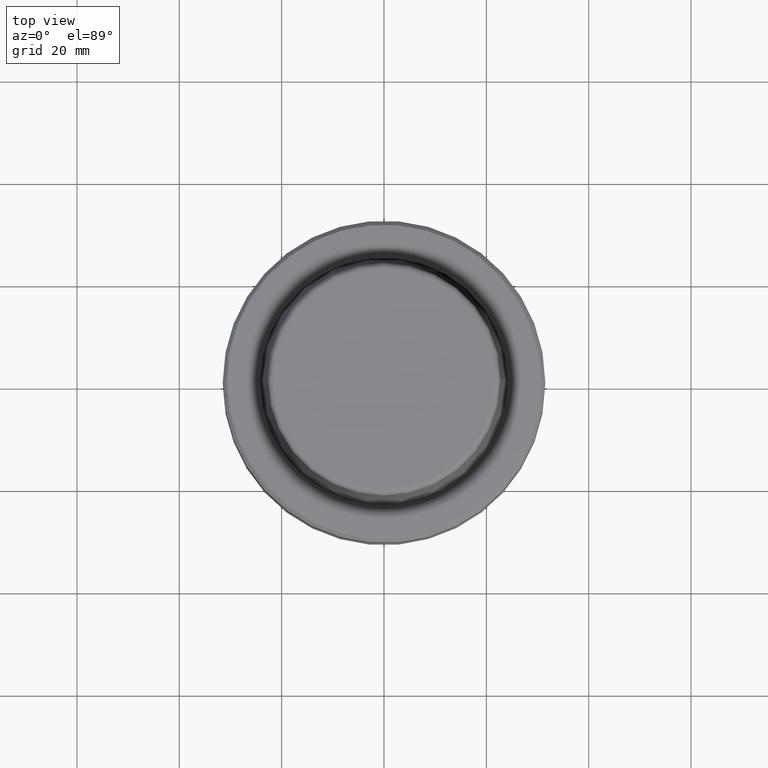
[diagram: clean part render]
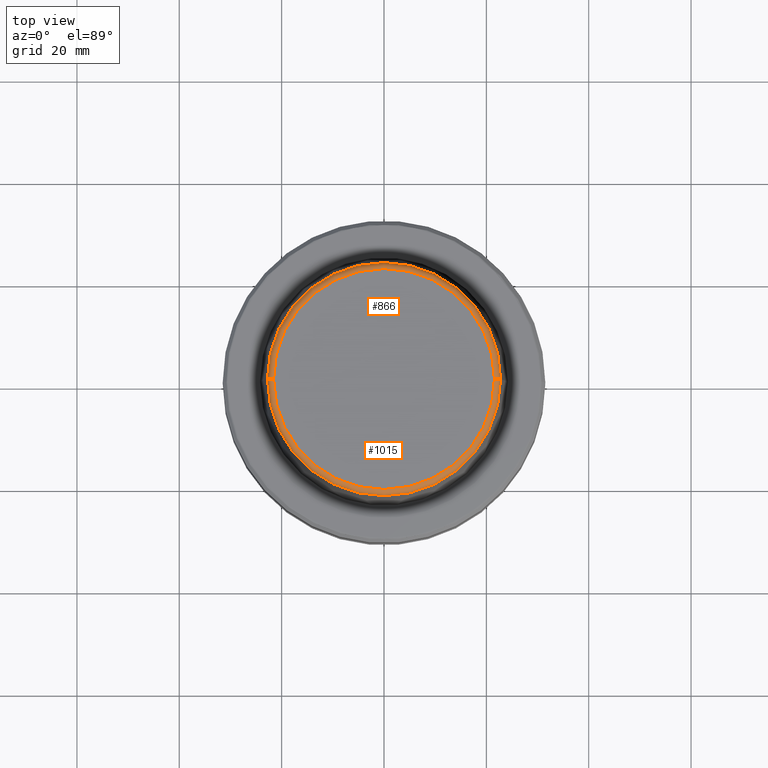
[diagram: same view with one multi-face feature highlighted, each face labeled with its STEP entity id]
A machine part, top view. The highlighted faces form ONE feature: a constant-radius fillet chain: 2 tangent blend faces with common blend radius 1.2 mm. The faces share edges in the B-rep.
Their STEP definitions:
[1] entity #1015 (Torus):
#3 = CIRCLE ( 'NONE', #635, 21.58108272732117100 ) ;
#14 = DIRECTION ( 'NONE',  ( 1.224646799147353200E-016, 1.000000000000000000, 0.0000000000000000000 ) ) ;
#22 = DIRECTION ( 'NONE',  ( 1.000000000000000000, 0.0000000000000000000, 0.0000000000000000000 ) ) ;
#26 = EDGE_CURVE ( 'NONE', #651, #326, #380, .T. ) ;
#31 = DIRECTION ( 'NONE',  ( 1.000000000000000000, 0.0000000000000000000, 0.0000000000000000000 ) ) ;
#56 = CIRCLE ( 'NONE', #747, 1.200000000000003100 ) ;
#65 = TOROIDAL_SURFACE ( 'NONE', #799, 21.58108272732117100, 1.200000000000003100 ) ;
#204 = CARTESIAN_POINT ( 'NONE',  ( 21.58108272732117100, 0.0000000000000000000, 30.69999999999999200 ) ) ;
#207 = CARTESIAN_POINT ( 'NONE',  ( 22.77957961851797100, 2.876386432489616700E-015, 30.76004333261571900 ) ) ;
#266 = ORIENTED_EDGE ( 'NONE', *, *, #1059, .F. ) ;
#267 = ORIENTED_EDGE ( 'NONE', *, *, #530, .T. ) ;
#300 = DIRECTION ( 'NONE',  ( 0.0000000000000000000, 0.0000000000000000000, -1.000000000000000000 ) ) ;
#304 = ORIENTED_EDGE ( 'NONE', *, *, #1211, .T. ) ;
#325 = CARTESIAN_POINT ( 'NONE',  ( -22.77957961851797100, 0.0000000000000000000, 30.76004333261571900 ) ) ;
#326 = VERTEX_POINT ( 'NONE', #745 ) ;
#329 = AXIS2_PLACEMENT_3D ( 'NONE', #395, #14, #648 ) ;
#338 = DIRECTION ( 'NONE',  ( -0.0000000000000000000, -0.0000000000000000000, 1.000000000000000000 ) ) ;
#367 = CIRCLE ( 'NONE', #640, 22.77957961851797100 ) ;
#380 = CIRCLE ( 'NONE', #329, 1.200000000000003100 ) ;
#388 = EDGE_LOOP ( 'NONE', ( #1027, #304, #267, #266 ) ) ;
#395 = CARTESIAN_POINT ( 'NONE',  ( -21.58108272732117100, 2.642920388414810300E-015, 30.69999999999999200 ) ) ;
#423 = CARTESIAN_POINT ( 'NONE',  ( 21.58108272732117100, 0.0000000000000000000, 31.89999999999999900 ) ) ;
#530 = EDGE_CURVE ( 'NONE', #1021, #1115, #56, .T. ) ;
#621 = DIRECTION ( 'NONE',  ( -0.0000000000000000000, -0.0000000000000000000, 1.000000000000000000 ) ) ;
#635 = AXIS2_PLACEMENT_3D ( 'NONE', #1191, #621, #31 ) ;
#640 = AXIS2_PLACEMENT_3D ( 'NONE', #934, #338, #1032 ) ;
#648 = DIRECTION ( 'NONE',  ( -1.000000000000000000, 1.224646799147353200E-016, 0.0000000000000000000 ) ) ;
#651 = VERTEX_POINT ( 'NONE', #325 ) ;
#745 = CARTESIAN_POINT ( 'NONE',  ( -21.58108272732117100, 2.716307157494421400E-015, 31.89999999999999900 ) ) ;
#747 = AXIS2_PLACEMENT_3D ( 'NONE', #204, #897, #300 ) ;
#794 = DIRECTION ( 'NONE',  ( -0.0000000000000000000, -0.0000000000000000000, 1.000000000000000000 ) ) ;
#799 = AXIS2_PLACEMENT_3D ( 'NONE', #1185, #794, #22 ) ;
#837 = FACE_OUTER_BOUND ( 'NONE', #388, .T. ) ;
#897 = DIRECTION ( 'NONE',  ( 0.0000000000000000000, -1.000000000000000000, 0.0000000000000000000 ) ) ;
#934 = CARTESIAN_POINT ( 'NONE',  ( 0.0000000000000000000, 0.0000000000000000000, 30.76004333261571900 ) ) ;
#1015 = ADVANCED_FACE ( 'NONE', ( #837 ), #65, .T. ) ;
#1021 = VERTEX_POINT ( 'NONE', #207 ) ;
#1027 = ORIENTED_EDGE ( 'NONE', *, *, #26, .F. ) ;
#1032 = DIRECTION ( 'NONE',  ( 1.000000000000000000, 0.0000000000000000000, 0.0000000000000000000 ) ) ;
#1059 = EDGE_CURVE ( 'NONE', #326, #1115, #3, .T. ) ;
#1115 = VERTEX_POINT ( 'NONE', #423 ) ;
#1185 = CARTESIAN_POINT ( 'NONE',  ( 0.0000000000000000000, 0.0000000000000000000, 30.69999999999999200 ) ) ;
#1191 = CARTESIAN_POINT ( 'NONE',  ( 0.0000000000000000000, 0.0000000000000000000, 31.89999999999999900 ) ) ;
#1211 = EDGE_CURVE ( 'NONE', #651, #1021, #367, .T. ) ;
[2] entity #866 (Torus):
#14 = DIRECTION ( 'NONE',  ( 1.224646799147353200E-016, 1.000000000000000000, 0.0000000000000000000 ) ) ;
#23 = DIRECTION ( 'NONE',  ( 1.000000000000000000, 0.0000000000000000000, 0.0000000000000000000 ) ) ;
#26 = EDGE_CURVE ( 'NONE', #651, #326, #380, .T. ) ;
#56 = CIRCLE ( 'NONE', #747, 1.200000000000003100 ) ;
#204 = CARTESIAN_POINT ( 'NONE',  ( 21.58108272732117100, 0.0000000000000000000, 30.69999999999999200 ) ) ;
#207 = CARTESIAN_POINT ( 'NONE',  ( 22.77957961851797100, 2.876386432489616700E-015, 30.76004333261571900 ) ) ;
#252 = EDGE_CURVE ( 'NONE', #1115, #326, #886, .T. ) ;
#300 = DIRECTION ( 'NONE',  ( 0.0000000000000000000, 0.0000000000000000000, -1.000000000000000000 ) ) ;
#309 = FACE_OUTER_BOUND ( 'NONE', #688, .T. ) ;
#325 = CARTESIAN_POINT ( 'NONE',  ( -22.77957961851797100, 0.0000000000000000000, 30.76004333261571900 ) ) ;
#326 = VERTEX_POINT ( 'NONE', #745 ) ;
#329 = AXIS2_PLACEMENT_3D ( 'NONE', #395, #14, #648 ) ;
#369 = CIRCLE ( 'NONE', #1194, 22.77957961851797100 ) ;
#380 = CIRCLE ( 'NONE', #329, 1.200000000000003100 ) ;
#395 = CARTESIAN_POINT ( 'NONE',  ( -21.58108272732117100, 2.642920388414810300E-015, 30.69999999999999200 ) ) ;
#423 = CARTESIAN_POINT ( 'NONE',  ( 21.58108272732117100, 0.0000000000000000000, 31.89999999999999900 ) ) ;
#434 = TOROIDAL_SURFACE ( 'NONE', #512, 21.58108272732117100, 1.200000000000003100 ) ;
#512 = AXIS2_PLACEMENT_3D ( 'NONE', #1055, #960, #1142 ) ;
#530 = EDGE_CURVE ( 'NONE', #1021, #1115, #56, .T. ) ;
#542 = EDGE_CURVE ( 'NONE', #1021, #651, #369, .T. ) ;
#543 = CARTESIAN_POINT ( 'NONE',  ( 0.0000000000000000000, 0.0000000000000000000, 31.89999999999999900 ) ) ;
#612 = DIRECTION ( 'NONE',  ( -0.0000000000000000000, -0.0000000000000000000, 1.000000000000000000 ) ) ;
#648 = DIRECTION ( 'NONE',  ( -1.000000000000000000, 1.224646799147353200E-016, 0.0000000000000000000 ) ) ;
#651 = VERTEX_POINT ( 'NONE', #325 ) ;
#657 = DIRECTION ( 'NONE',  ( 1.000000000000000000, 0.0000000000000000000, 0.0000000000000000000 ) ) ;
#688 = EDGE_LOOP ( 'NONE', ( #916, #824, #1078, #1237 ) ) ;
#745 = CARTESIAN_POINT ( 'NONE',  ( -21.58108272732117100, 2.716307157494421400E-015, 31.89999999999999900 ) ) ;
#747 = AXIS2_PLACEMENT_3D ( 'NONE', #204, #897, #300 ) ;
#824 = ORIENTED_EDGE ( 'NONE', *, *, #26, .T. ) ;
#866 = ADVANCED_FACE ( 'NONE', ( #309 ), #434, .T. ) ;
#886 = CIRCLE ( 'NONE', #1051, 21.58108272732117100 ) ;
#897 = DIRECTION ( 'NONE',  ( 0.0000000000000000000, -1.000000000000000000, 0.0000000000000000000 ) ) ;
#916 = ORIENTED_EDGE ( 'NONE', *, *, #542, .T. ) ;
#960 = DIRECTION ( 'NONE',  ( -0.0000000000000000000, -0.0000000000000000000, 1.000000000000000000 ) ) ;
#1021 = VERTEX_POINT ( 'NONE', #207 ) ;
#1051 = AXIS2_PLACEMENT_3D ( 'NONE', #543, #1229, #657 ) ;
#1055 = CARTESIAN_POINT ( 'NONE',  ( 0.0000000000000000000, 0.0000000000000000000, 30.69999999999999200 ) ) ;
#1078 = ORIENTED_EDGE ( 'NONE', *, *, #252, .F. ) ;
#1115 = VERTEX_POINT ( 'NONE', #423 ) ;
#1142 = DIRECTION ( 'NONE',  ( 1.000000000000000000, 0.0000000000000000000, 0.0000000000000000000 ) ) ;
#1187 = CARTESIAN_POINT ( 'NONE',  ( 0.0000000000000000000, 0.0000000000000000000, 30.76004333261571900 ) ) ;
#1194 = AXIS2_PLACEMENT_3D ( 'NONE', #1187, #612, #23 ) ;
#1229 = DIRECTION ( 'NONE',  ( -0.0000000000000000000, -0.0000000000000000000, 1.000000000000000000 ) ) ;
#1237 = ORIENTED_EDGE ( 'NONE', *, *, #530, .F. ) ;